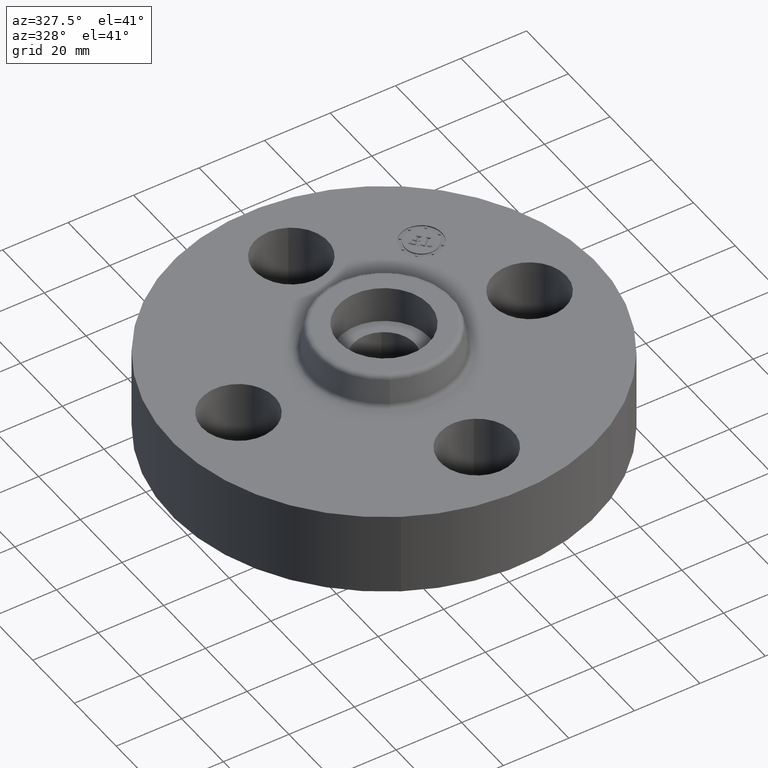
[diagram: clean part render]
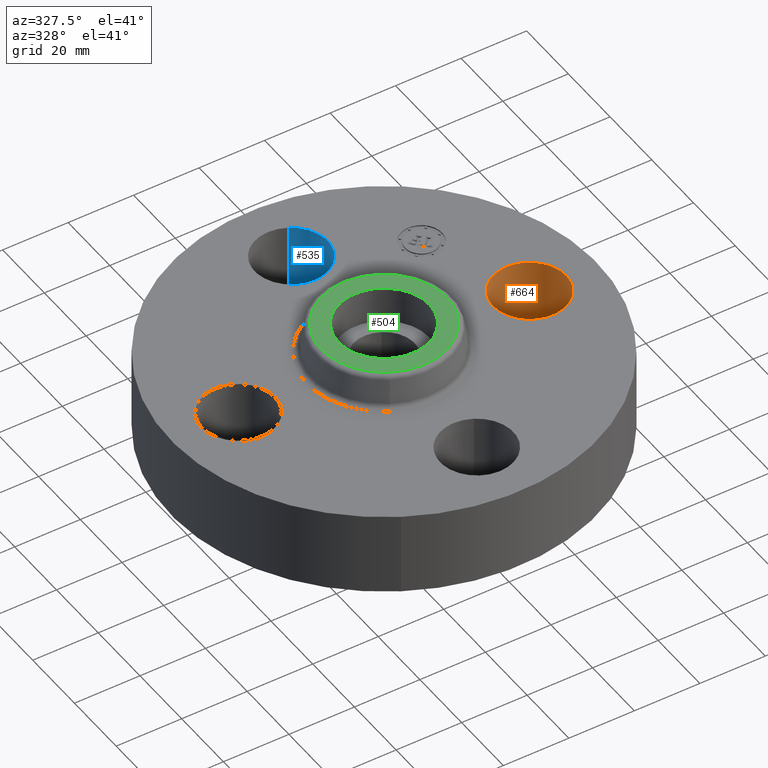
[diagram: same view with three faces highlighted in distinct colors, each labeled with its STEP entity id]
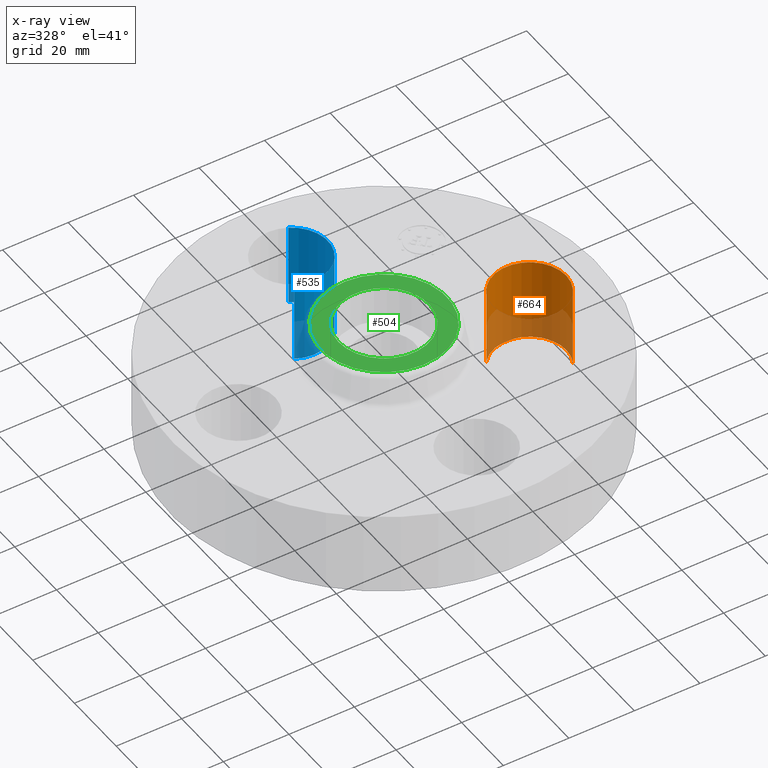
[diagram: x-ray of the same camera — body ghosted, the three highlighted faces saturated]
A machine part, auxiliary view with three faces highlighted in distinct colors.
The next image is the same camera in x-ray (body ghosted, the three faces saturated) — at least one of them is partly hidden behind the body in this view.
Their STEP definitions:

[orange] entity #664 — the highlighted cylindrical surface (partial cylindrical patch) has radius 11.176 mm, axis along (0, -0, -1).
#225=AXIS2_PLACEMENT_3D('Circle Axis2P3D',#223,#224,$) ;
#637=AXIS2_PLACEMENT_3D('Cylinder Axis2P3D',#634,#635,#636) ;
#655=AXIS2_PLACEMENT_3D('Circle Axis2P3D',#653,#654,$) ;
#218=CARTESIAN_POINT('Vertex',(2.13613632724,-0.210947236987,-1.39870617276E-016)) ;
#220=CARTESIAN_POINT('Vertex',(1.36386367277,0.210947236987,-1.39870617276E-016)) ;
#223=CARTESIAN_POINT('Axis2P3D Location',(1.75000000001,-1.39870617276E-016,0.)) ;
#634=CARTESIAN_POINT('Axis2P3D Location',(1.75000000001,0.,0.99606299213)) ;
#639=CARTESIAN_POINT('Line Origine',(1.36386367277,0.210947236987,0.500000000002)) ;
#643=CARTESIAN_POINT('Vertex',(1.36386367277,0.210947236987,1.)) ;
#646=CARTESIAN_POINT('Line Origine',(2.13613632724,-0.210947236987,0.500000000002)) ;
#650=CARTESIAN_POINT('Vertex',(2.13613632724,-0.210947236987,1.)) ;
#653=CARTESIAN_POINT('Axis2P3D Location',(1.75000000001,0.,1.)) ;
#224=DIRECTION('Axis2P3D Direction',(0.,0.,-0.0393700787402)) ;
#635=DIRECTION('Axis2P3D Direction',(0.,-0.,-0.0393700787402)) ;
#636=DIRECTION('Axis2P3D XDirection',(0.0345504945626,-0.0188750212049,0.)) ;
#640=DIRECTION('Vector Direction',(0.,0.,-0.0393700787402)) ;
#647=DIRECTION('Vector Direction',(0.,0.,-0.0393700787402)) ;
#654=DIRECTION('Axis2P3D Direction',(0.,-0.,-0.0393700787402)) ;
#641=VECTOR('Line Direction',#640,0.0393700787402) ;
#648=VECTOR('Line Direction',#647,0.0393700787402) ;
#659=ORIENTED_EDGE('',*,*,#645,.F.) ;
#660=ORIENTED_EDGE('',*,*,#227,.T.) ;
#661=ORIENTED_EDGE('',*,*,#652,.T.) ;
#662=ORIENTED_EDGE('',*,*,#657,.F.) ;
#664=ADVANCED_FACE('PartBody',(#663),#638,.F.) ;
#226=CIRCLE('generated circle',#225,0.440000000002) ;
#656=CIRCLE('generated circle',#655,0.440000000002) ;
#638=CYLINDRICAL_SURFACE('generated cylinder',#637,0.440000000002) ;
#227=EDGE_CURVE('',#221,#219,#226,.T.) ;
#645=EDGE_CURVE('',#221,#644,#642,.F.) ;
#652=EDGE_CURVE('',#219,#651,#649,.F.) ;
#657=EDGE_CURVE('',#644,#651,#656,.T.) ;
#658=EDGE_LOOP('',(#659,#660,#661,#662)) ;
#663=FACE_OUTER_BOUND('',#658,.T.) ;
#642=LINE('Line',#639,#641) ;
#649=LINE('Line',#646,#648) ;
#219=VERTEX_POINT('',#218) ;
#221=VERTEX_POINT('',#220) ;
#644=VERTEX_POINT('',#643) ;
#651=VERTEX_POINT('',#650) ;

[blue] entity #535 — the highlighted cylindrical surface (partial cylindrical patch) has radius 11.176 mm, axis along (0, 0, -1).
#283=AXIS2_PLACEMENT_3D('Circle Axis2P3D',#281,#282,$) ;
#508=AXIS2_PLACEMENT_3D('Cylinder Axis2P3D',#505,#506,#507) ;
#526=AXIS2_PLACEMENT_3D('Circle Axis2P3D',#524,#525,$) ;
#276=CARTESIAN_POINT('Vertex',(-0.210947236987,1.36386367277,0.)) ;
#278=CARTESIAN_POINT('Vertex',(0.210947236987,2.13613632724,-1.39870617276E-016)) ;
#281=CARTESIAN_POINT('Axis2P3D Location',(-3.1470888887E-016,1.75000000001,0.)) ;
#505=CARTESIAN_POINT('Axis2P3D Location',(-3.21469784777E-016,1.75000000001,0.99606299213)) ;
#510=CARTESIAN_POINT('Line Origine',(0.210947236987,2.13613632724,0.500000000002)) ;
#514=CARTESIAN_POINT('Vertex',(0.210947236987,2.13613632724,1.)) ;
#517=CARTESIAN_POINT('Line Origine',(-0.210947236987,1.36386367277,0.500000000002)) ;
#521=CARTESIAN_POINT('Vertex',(-0.210947236987,1.36386367277,1.)) ;
#524=CARTESIAN_POINT('Axis2P3D Location',(-3.21469784777E-016,1.75000000001,1.)) ;
#282=DIRECTION('Axis2P3D Direction',(0.,0.,-0.0393700787402)) ;
#506=DIRECTION('Axis2P3D Direction',(0.,0.,-0.0393700787402)) ;
#507=DIRECTION('Axis2P3D XDirection',(-0.0188750212049,-0.0345504945626,-0.)) ;
#511=DIRECTION('Vector Direction',(0.,0.,-0.0393700787402)) ;
#518=DIRECTION('Vector Direction',(0.,0.,-0.0393700787402)) ;
#525=DIRECTION('Axis2P3D Direction',(0.,0.,-0.0393700787402)) ;
#512=VECTOR('Line Direction',#511,0.0393700787402) ;
#519=VECTOR('Line Direction',#518,0.0393700787402) ;
#530=ORIENTED_EDGE('',*,*,#516,.F.) ;
#531=ORIENTED_EDGE('',*,*,#285,.T.) ;
#532=ORIENTED_EDGE('',*,*,#523,.T.) ;
#533=ORIENTED_EDGE('',*,*,#528,.F.) ;
#535=ADVANCED_FACE('PartBody',(#534),#509,.F.) ;
#284=CIRCLE('generated circle',#283,0.440000000002) ;
#527=CIRCLE('generated circle',#526,0.440000000002) ;
#509=CYLINDRICAL_SURFACE('generated cylinder',#508,0.440000000002) ;
#285=EDGE_CURVE('',#279,#277,#284,.T.) ;
#516=EDGE_CURVE('',#279,#515,#513,.F.) ;
#523=EDGE_CURVE('',#277,#522,#520,.F.) ;
#528=EDGE_CURVE('',#515,#522,#527,.T.) ;
#529=EDGE_LOOP('',(#530,#531,#532,#533)) ;
#534=FACE_OUTER_BOUND('',#529,.T.) ;
#513=LINE('Line',#510,#512) ;
#520=LINE('Line',#517,#519) ;
#277=VERTEX_POINT('',#276) ;
#279=VERTEX_POINT('',#278) ;
#515=VERTEX_POINT('',#514) ;
#522=VERTEX_POINT('',#521) ;

[green] entity #504 — the highlighted planar face has unit normal (0, 0, -1).
#448=AXIS2_PLACEMENT_3D('Circle Axis2P3D',#446,#447,$) ;
#467=AXIS2_PLACEMENT_3D('Circle Axis2P3D',#465,#466,$) ;
#480=AXIS2_PLACEMENT_3D('Plane Axis2P3D',#477,#478,#479) ;
#488=AXIS2_PLACEMENT_3D('Circle Axis2P3D',#486,#487,$) ;
#497=AXIS2_PLACEMENT_3D('Circle Axis2P3D',#495,#496,$) ;
#443=CARTESIAN_POINT('Vertex',(0.363236648798,0.664900225701,1.38000000001)) ;
#446=CARTESIAN_POINT('Axis2P3D Location',(0.,0.,1.38000000001)) ;
#450=CARTESIAN_POINT('Vertex',(-0.363236648798,-0.664900225701,1.38000000001)) ;
#465=CARTESIAN_POINT('Axis2P3D Location',(0.,0.,1.38000000001)) ;
#477=CARTESIAN_POINT('Axis2P3D Location',(0.,0.757649769463,1.38000000001)) ;
#486=CARTESIAN_POINT('Axis2P3D Location',(1.92322098754E-016,1.39870617276E-016,1.38000000001)) ;
#490=CARTESIAN_POINT('Vertex',(-0.478282496232,0.26128691854,1.38000000001)) ;
#492=CARTESIAN_POINT('Vertex',(0.478282496232,-0.26128691854,1.38000000001)) ;
#495=CARTESIAN_POINT('Axis2P3D Location',(1.74838271595E-016,1.39870617276E-016,1.38000000001)) ;
#447=DIRECTION('Axis2P3D Direction',(0.,0.,-0.0393700787402)) ;
#466=DIRECTION('Axis2P3D Direction',(0.,0.,-0.0393700787402)) ;
#478=DIRECTION('Axis2P3D Direction',(0.,0.,-0.0393700787402)) ;
#479=DIRECTION('Axis2P3D XDirection',(0.0393700787402,0.,0.)) ;
#487=DIRECTION('Axis2P3D Direction',(0.,0.,-0.0393700787402)) ;
#496=DIRECTION('Axis2P3D Direction',(0.,0.,-0.0393700787402)) ;
#483=ORIENTED_EDGE('',*,*,#452,.F.) ;
#484=ORIENTED_EDGE('',*,*,#469,.F.) ;
#501=ORIENTED_EDGE('',*,*,#494,.T.) ;
#502=ORIENTED_EDGE('',*,*,#499,.T.) ;
#503=FACE_BOUND('',#500,.T.) ;
#504=ADVANCED_FACE('PartBody',(#485,#503),#481,.F.) ;
#449=CIRCLE('generated circle',#448,0.757649769463) ;
#468=CIRCLE('generated circle',#467,0.757649769463) ;
#489=CIRCLE('generated circle',#488,0.545000000002) ;
#498=CIRCLE('generated circle',#497,0.545000000002) ;
#452=EDGE_CURVE('',#444,#451,#449,.T.) ;
#469=EDGE_CURVE('',#451,#444,#468,.T.) ;
#494=EDGE_CURVE('',#491,#493,#489,.T.) ;
#499=EDGE_CURVE('',#493,#491,#498,.T.) ;
#482=EDGE_LOOP('',(#483,#484)) ;
#500=EDGE_LOOP('',(#501,#502)) ;
#485=FACE_OUTER_BOUND('',#482,.T.) ;
#481=PLANE('',#480) ;
#444=VERTEX_POINT('',#443) ;
#451=VERTEX_POINT('',#450) ;
#491=VERTEX_POINT('',#490) ;
#493=VERTEX_POINT('',#492) ;